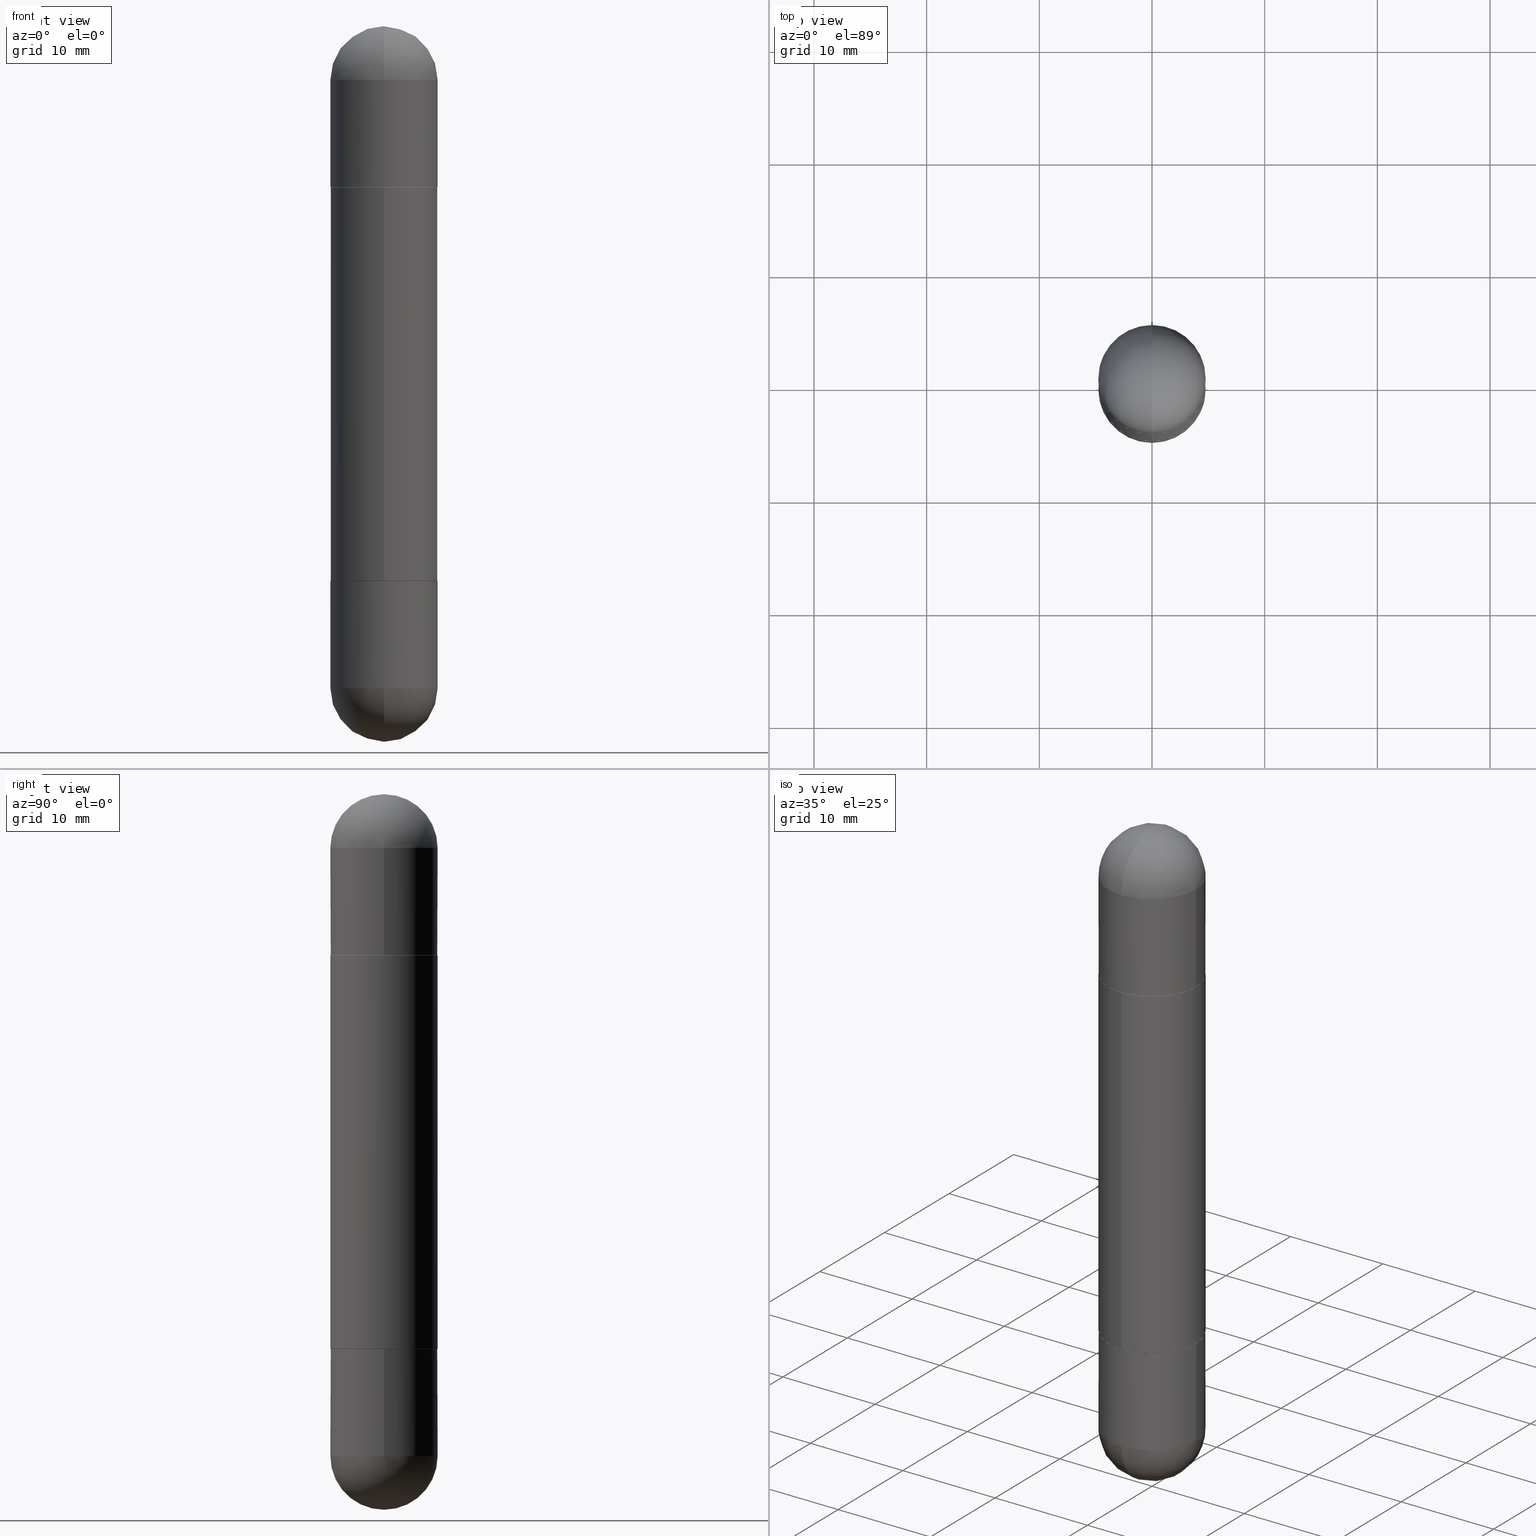
[diagram: canonical four-view strip — front | top / right | iso, engineering-drawing reading convention]
A machine part, canonical four-view strip (front | top / right | iso — engineering-drawing reading convention). The complete STEP part file that produces these views, byte-faithful:
ISO-10303-21;
HEADER;
FILE_DESCRIPTION (( 'STEP AP203' ),
    '1' );
FILE_NAME ('31536.STEP',
    '2024-03-01T12:42:35',
    ( '' ),
    ( '' ),
    'SwSTEP 2.0',
    'SolidWorks 2023',
    '' );
FILE_SCHEMA (( 'CONFIG_CONTROL_DESIGN' ));
ENDSEC;

DATA;
#1 = MANIFOLD_SOLID_BREP ( 'Mirror4[1]', #203 ) ;
#2 = ADVANCED_FACE ( 'NONE', ( #295 ), #538, .F. ) ;
#3 = ORIENTED_EDGE ( 'NONE', *, *, #800, .T. ) ;
#4 = DIRECTION ( 'NONE',  ( 2.438088387897960049E-29, -3.491481338843145188E-15, -1.000000000000000000 ) ) ;
#5 = MANIFOLD_SOLID_BREP ( 'Body-Move/Copy2[1]', #783 ) ;
#6 = FACE_OUTER_BOUND ( 'NONE', #450, .T. ) ;
#7 = EDGE_CURVE ( 'NONE', #56, #675, #753, .T. ) ;
#8 = ORIENTED_EDGE ( 'NONE', *, *, #31, .T. ) ;
#9 = CARTESIAN_POINT ( 'NONE',  ( -0.1875000000000000555, -6.088003085826207710E-15, -2.312500000000000000 ) ) ;
#10 = ADVANCED_FACE ( 'NONE', ( #155 ), #582, .F. ) ;
#11 = DIRECTION ( 'NONE',  ( 1.000000000000000000, -6.982962677686266711E-15, 0.000000000000000000 ) ) ;
#12 = AXIS2_PLACEMENT_3D ( 'NONE', #300, #484, #733 ) ;
#13 = ADVANCED_FACE ( 'NONE', ( #713 ), #574, .T. ) ;
#14 = AXIS2_PLACEMENT_3D ( 'NONE', #88, #352, #634 ) ;
#15 = DIRECTION ( 'NONE',  ( 1.000000000000000000, -6.982962677686270655E-15, 0.000000000000000000 ) ) ;
#16 = CARTESIAN_POINT ( 'NONE',  ( 5.324026836389243254E-29, -8.548232964214825368E-15, -0.1875000000000006661 ) ) ;
#17 = ORIENTED_EDGE ( 'NONE', *, *, #645, .T. ) ;
#18 = MANIFOLD_SOLID_BREP ( 'Mirror4[3]', #89 ) ;
#19 = EDGE_CURVE ( 'NONE', #475, #297, #506, .T. ) ;
#20 = DIRECTION ( 'NONE',  ( -1.000000000000000000, 6.982962677686265922E-15, 4.876176775795935793E-29 ) ) ;
#21 = DIRECTION ( 'NONE',  ( 2.446135509155562374E-29, -3.490526582243119048E-15, 1.000000000000000000 ) ) ;
#22 = ORIENTED_EDGE ( 'NONE', *, *, #181, .T. ) ;
#23 = VERTEX_POINT ( 'NONE', #263 ) ;
#24 = ORIENTED_EDGE ( 'NONE', *, *, #325, .F. ) ;
#25 = DIRECTION ( 'NONE',  ( -6.982962677686265922E-15, -1.000000000000000000, -3.661994629576761260E-15 ) ) ;
#26 = EDGE_CURVE ( 'NONE', #746, #62, #332, .T. ) ;
#27 = CARTESIAN_POINT ( 'NONE',  ( 0.000000000000000000, 0.000000000000000000, -1.250000000000000222 ) ) ;
#28 = CIRCLE ( 'NONE', #754, 0.1875000000000000555 ) ;
#29 = VERTEX_POINT ( 'NONE', #515 ) ;
#30 = CIRCLE ( 'NONE', #72, 0.1875000000000003331 ) ;
#31 = EDGE_CURVE ( 'NONE', #270, #344, #214, .T. ) ;
#32 = DIRECTION ( 'NONE',  ( 1.000000000000000000, -6.982962677686270655E-15, 0.000000000000000000 ) ) ;
#33 = VERTEX_POINT ( 'NONE', #333 ) ;
#34 = EDGE_LOOP ( 'NONE', ( #508, #244, #272, #337 ) ) ;
#35 = CARTESIAN_POINT ( 'NONE',  ( 0.1875000000000000278, -8.075796336744191053E-15, -0.5620000000000007212 ) ) ;
#36 = VERTEX_POINT ( 'NONE', #502 ) ;
#37 = CARTESIAN_POINT ( 'NONE',  ( 5.655146614303128380E-29, -8.074050596074775072E-15, -0.1875000000000006661 ) ) ;
#38 = CYLINDRICAL_SURFACE ( 'NONE', #12, 0.1875000000000000555 ) ;
#39 = CARTESIAN_POINT ( 'NONE',  ( 0.000000000000000000, 0.000000000000000000, 0.000000000000000000 ) ) ;
#40 = ADVANCED_FACE ( 'NONE', ( #633 ), #561, .T. ) ;
#41 = ORIENTED_EDGE ( 'NONE', *, *, #631, .F. ) ;
#42 = FACE_OUTER_BOUND ( 'NONE', #473, .T. ) ;
#43 = ADVANCED_FACE ( 'NONE', ( #6 ), #330, .T. ) ;
#44 = AXIS2_PLACEMENT_3D ( 'NONE', #477, #359, #349 ) ;
#45 = CIRCLE ( 'NONE', #619, 0.1875000000000001110 ) ;
#46 = DIRECTION ( 'NONE',  ( 4.851104656541377638E-15, 0.7071067811866103003, -0.7071067811864847341 ) ) ;
#47 = ORIENTED_EDGE ( 'NONE', *, *, #610, .T. ) ;
#48 = LOCAL_TIME ( 7, 42, 35.00000000000000000, #444 ) ;
#49 = CARTESIAN_POINT ( 'NONE',  ( 5.655146614303128380E-29, -8.074050596074775072E-15, -0.1875000000000006661 ) ) ;
#50 = DIRECTION ( 'NONE',  ( 2.445468806185136597E-29, -3.491481338843145583E-15, 1.000000000000000000 ) ) ;
#51 = APPLICATION_PROTOCOL_DEFINITION ( 'international standard', 'config_control_design', 1994, #396 ) ;
#52 = DIRECTION ( 'NONE',  ( -2.445468806185136877E-29, 3.491481338843145188E-15, -1.000000000000000000 ) ) ;
#53 = CARTESIAN_POINT ( 'NONE',  ( 5.324026836389243254E-29, -8.548232964214825368E-15, -2.312500000000000000 ) ) ;
#54 = PERSON_AND_ORGANIZATION ( #414, #307 ) ;
#55 = ADVANCED_FACE ( 'NONE', ( #385 ), #585, .F. ) ;
#56 = VERTEX_POINT ( 'NONE', #138 ) ;
#57 = CARTESIAN_POINT ( 'NONE',  ( 0.1875000000000000555, -1.309305502066175205E-15, 9.142831454617382414E-30 ) ) ;
#58 = DATE_TIME_ROLE ( 'classification_date' ) ;
#59 = AXIS2_PLACEMENT_3D ( 'NONE', #156, #588, #15 ) ;
#60 = CIRCLE ( 'NONE', #653, 0.1875000000000000555 ) ;
#61 = CARTESIAN_POINT ( 'NONE',  ( 5.324026836389243254E-29, -8.548232964214825368E-15, -0.1875000000000006661 ) ) ;
#62 = VERTEX_POINT ( 'NONE', #461 ) ;
#63 = PERSON_AND_ORGANIZATION ( #414, #307 ) ;
#64 = DIRECTION ( 'NONE',  ( -6.982962677686266711E-15, -1.000000000000000000, -2.913971193241879189E-15 ) ) ;
#65 = EDGE_LOOP ( 'NONE', ( #791, #217, #541, #731 ) ) ;
#66 = APPROVAL_ROLE ( '' ) ;
#67 = EDGE_CURVE ( 'NONE', #781, #23, #705, .T. ) ;
#68 = DIRECTION ( 'NONE',  ( -2.446135509155562374E-29, 3.490526582243119048E-15, -1.000000000000000000 ) ) ;
#69 = DIRECTION ( 'NONE',  ( 1.000000000000000000, -6.982962677686265922E-15, 0.000000000000000000 ) ) ;
#70 = CARTESIAN_POINT ( 'NONE',  ( -0.1875000000000000555, 1.332267629550188243E-15, -9.223003294227950793E-30 ) ) ;
#71 = CIRCLE ( 'NONE', #291, 0.1864999999999999714 ) ;
#72 = AXIS2_PLACEMENT_3D ( 'NONE', #16, #288, #281 ) ;
#73 = CARTESIAN_POINT ( 'NONE',  ( 5.324026836389243254E-29, -8.548232964214825368E-15, -0.1875000000000006661 ) ) ;
#74 = LOCAL_TIME ( 7, 42, 35.00000000000000000, #627 ) ;
#75 = APPROVAL ( #387, 'UNSPECIFIED' ) ;
#76 = VERTEX_POINT ( 'NONE', #576 ) ;
#77 = EDGE_CURVE ( 'NONE', #344, #560, #191, .T. ) ;
#78 = CYLINDRICAL_SURFACE ( 'NONE', #668, 0.1875000000000000555 ) ;
#79 = ORIENTED_EDGE ( 'NONE', *, *, #67, .T. ) ;
#80 = DIRECTION ( 'NONE',  ( -2.445468806185136877E-29, 3.491481338843145188E-15, 1.000000000000000000 ) ) ;
#81 = CARTESIAN_POINT ( 'NONE',  ( 1.279482876584437493E-15, 0.1864999999999932268, -0.5620000000000000551 ) ) ;
#82 = ORIENTED_EDGE ( 'NONE', *, *, #206, .T. ) ;
#83 = ADVANCED_FACE ( 'NONE', ( #507 ), #78, .T. ) ;
#84 = DIMENSIONAL_EXPONENTS ( 1.000000000000000000, 0.000000000000000000, 0.000000000000000000, 0.000000000000000000, 0.000000000000000000, 0.000000000000000000, 0.000000000000000000 ) ;
#85 = DIRECTION ( 'NONE',  ( -6.982962677686265922E-15, -1.000000000000000000, 0.000000000000000000 ) ) ;
#86 = EDGE_LOOP ( 'NONE', ( #543, #395, #779, #775 ) ) ;
#87 = DIRECTION ( 'NONE',  ( 6.982962677686266711E-15, 1.000000000000000000, 3.460340791974727494E-15 ) ) ;
#88 = CARTESIAN_POINT ( 'NONE',  ( 5.655146614303128380E-29, -8.074050596074775072E-15, -0.1875000000000006661 ) ) ;
#89 = CLOSED_SHELL ( 'NONE', ( #96, #13, #513, #462, #282 ) ) ;
#90 = CIRCLE ( 'NONE', #784, 0.1864999999999999714 ) ;
#91 = CIRCLE ( 'NONE', #776, 0.1875000000000000555 ) ;
#92 = AXIS2_PLACEMENT_3D ( 'NONE', #137, #575, #761 ) ;
#93 = ORIENTED_EDGE ( 'NONE', *, *, #136, .T. ) ;
#94 = DIRECTION ( 'NONE',  ( -1.000000000000000000, 0.000000000000000000, 0.000000000000000000 ) ) ;
#95 = ORIENTED_EDGE ( 'NONE', *, *, #581, .F. ) ;
#96 = ADVANCED_FACE ( 'NONE', ( #766 ), #572, .T. ) ;
#97 = ORIENTED_EDGE ( 'NONE', *, *, #234, .T. ) ;
#98 = ORIENTED_EDGE ( 'NONE', *, *, #345, .T. ) ;
#99 = CARTESIAN_POINT ( 'NONE',  ( -1.309305502066128860E-15, -0.1875000000000069389, -0.5630000000000014992 ) ) ;
#100 = CARTESIAN_POINT ( 'NONE',  ( -0.1875000000000000278, -6.133927340794232602E-15, -0.5620000000000007212 ) ) ;
#101 = DIRECTION ( 'NONE',  ( -6.982962677686265922E-15, -1.000000000000000000, -3.661994629576761260E-15 ) ) ;
#102 = AXIS2_PLACEMENT_3D ( 'NONE', #159, #458, #397 ) ;
#103 = UNCERTAINTY_MEASURE_WITH_UNIT (LENGTH_MEASURE( 1.000000000000000082E-05 ), #552, 'distance_accuracy_value', 'NONE');
#104 = EDGE_LOOP ( 'NONE', ( #350, #540 ) ) ;
#105 = DIRECTION ( 'NONE',  ( -2.446135509155562374E-29, 3.490526582243119048E-15, 1.000000000000000000 ) ) ;
#106 = ORIENTED_EDGE ( 'NONE', *, *, #550, .T. ) ;
#107 = ADVANCED_FACE ( 'NONE', ( #762 ), #276, .T. ) ;
#108 = DIRECTION ( 'NONE',  ( 1.000000000000000000, -6.982962677686270655E-15, 0.000000000000000000 ) ) ;
#109 = CARTESIAN_POINT ( 'NONE',  ( 4.740610616743479654E-29, -6.764640516387164684E-15, -0.5620000000000007212 ) ) ;
#110 = ORIENTED_EDGE ( 'NONE', *, *, #7, .F. ) ;
#111 = EDGE_CURVE ( 'NONE', #584, #348, #778, .T. ) ;
#112 = CARTESIAN_POINT ( 'NONE',  ( -1.286343374582108525E-15, -0.1875000000000084932, -0.1875000000000013045 ) ) ;
#113 = ORIENTED_EDGE ( 'NONE', *, *, #232, .T. ) ;
#114 = LINE ( 'NONE', #736, #162 ) ;
#115 = FACE_OUTER_BOUND ( 'NONE', #65, .T. ) ;
#116 = AXIS2_PLACEMENT_3D ( 'NONE', #241, #303, #366 ) ;
#117 = AXIS2_PLACEMENT_3D ( 'NONE', #133, #468, #638 ) ;
#118 = CC_DESIGN_APPROVAL ( #75, ( #579 ) ) ;
#119 = PLANE ( 'NONE',  #238 ) ;
#120 = ORIENTED_EDGE ( 'NONE', *, *, #255, .F. ) ;
#121 = APPROVAL_ROLE ( '' ) ;
#122 = CARTESIAN_POINT ( 'NONE',  ( -0.1875000000000000278, -6.088003085826206921E-15, -1.937999999999999945 ) ) ;
#123 = DIRECTION ( 'NONE',  ( -1.000000000000000000, 6.982962677686266711E-15, -4.883557194083113462E-29 ) ) ;
#124 = CARTESIAN_POINT ( 'NONE',  ( 0.000000000000000000, 0.000000000000000000, -2.500000000000000444 ) ) ;
#125 = ORIENTED_EDGE ( 'NONE', *, *, #664, .T. ) ;
#126 = LINE ( 'NONE', #57, #192 ) ;
#127 = COORDINATED_UNIVERSAL_TIME_OFFSET ( 5, 0, .BEHIND. ) ;
#128 = DIRECTION ( 'NONE',  ( 5.024295867788490741E-15, 0.7071067811866103003, 0.7071067811864847341 ) ) ;
#129 = DIRECTION ( 'NONE',  ( 6.982962677686266711E-15, 1.000000000000000000, -2.913971193241875639E-15 ) ) ;
#130 = DATE_AND_TIME ( #694, #48 ) ;
#131 = AXIS2_PLACEMENT_3D ( 'NONE', #804, #745, #129 ) ;
#132 = CIRCLE ( 'NONE', #643, 0.1864999999999999714 ) ;
#133 = CARTESIAN_POINT ( 'NONE',  ( 4.739318546386794397E-29, -6.766490834678016045E-15, -0.5620000000000007212 ) ) ;
#134 = DIRECTION ( 'NONE',  ( 1.000000000000000000, -6.982962677686265922E-15, 0.000000000000000000 ) ) ;
#135 = VERTEX_POINT ( 'NONE', #659 ) ;
#136 = EDGE_CURVE ( 'NONE', #318, #135, #177, .T. ) ;
#137 = CARTESIAN_POINT ( 'NONE',  ( 4.740610616743479654E-29, -6.764640516387164684E-15, -0.5620000000000007212 ) ) ;
#138 = CARTESIAN_POINT ( 'NONE',  ( 1.286343374582209894E-15, 0.1874999999999957534, -1.250000000000000222 ) ) ;
#139 = ADVANCED_FACE ( 'NONE', ( #472 ), #721, .T. ) ;
#140 = EDGE_LOOP ( 'NONE', ( #722, #95, #710, #592, #47 ) ) ;
#141 = SHAPE_DEFINITION_REPRESENTATION ( #558, #763 ) ;
#142 = DIRECTION ( 'NONE',  ( -7.105427357600999492E-15, -1.000000000000000000, 0.000000000000000000 ) ) ;
#143 = LINE ( 'NONE', #145, #223 ) ;
#144 = EDGE_LOOP ( 'NONE', ( #456, #185, #432, #608, #590 ) ) ;
#145 = CARTESIAN_POINT ( 'NONE',  ( -1.302322539388441071E-15, -0.1865000000000067437, -0.5620000000000013873 ) ) ;
#146 = AXIS2_PLACEMENT_3D ( 'NONE', #586, #4, #403 ) ;
#147 = AXIS2_PLACEMENT_3D ( 'NONE', #441, #305, #628 ) ;
#148 = EDGE_CURVE ( 'NONE', #76, #577, #526, .T. ) ;
#149 = AXIS2_PLACEMENT_3D ( 'NONE', #180, #105, #678 ) ;
#150 = ORIENTED_EDGE ( 'NONE', *, *, #531, .T. ) ;
#151 = DIRECTION ( 'NONE',  ( -6.982962677686265922E-15, -1.000000000000000000, -3.642463991552347014E-15 ) ) ;
#152 = DIRECTION ( 'NONE',  ( 1.000000000000000000, -6.860497997771530774E-15, -4.840798879624142912E-29 ) ) ;
#153 = ADVANCED_FACE ( 'NONE', ( #774 ), #729, .T. ) ;
#154 = DIRECTION ( 'NONE',  ( -1.000000000000000000, 6.982962677686265922E-15, 4.883557194083112340E-29 ) ) ;
#155 = FACE_OUTER_BOUND ( 'NONE', #386, .T. ) ;
#156 = CARTESIAN_POINT ( 'NONE',  ( 5.655146614303128380E-29, -8.074050596074775072E-15, -0.1875000000000006661 ) ) ;
#157 = CARTESIAN_POINT ( 'NONE',  ( 5.655146614303128380E-29, -8.074050596074775072E-15, -2.312500000000000000 ) ) ;
#158 = ORIENTED_EDGE ( 'NONE', *, *, #770, .F. ) ;
#159 = CARTESIAN_POINT ( 'NONE',  ( 0.000000000000000000, 0.000000000000000000, -2.500000000000000444 ) ) ;
#160 = CARTESIAN_POINT ( 'NONE',  ( -0.1875000000000000555, 1.286343374582162562E-15, -2.500000000000000444 ) ) ;
#161 = AXIS2_PLACEMENT_3D ( 'NONE', #271, #812, #151 ) ;
#162 = VECTOR ( 'NONE', #52, 39.37007874015748143 ) ;
#163 = ORIENTED_EDGE ( 'NONE', *, *, #790, .T. ) ;
#164 = CIRCLE ( 'NONE', #149, 0.1875000000000002220 ) ;
#165 = APPROVAL_PERSON_ORGANIZATION ( #193, #228, #121 ) ;
#166 = VERTEX_POINT ( 'NONE', #293 ) ;
#167 = CARTESIAN_POINT ( 'NONE',  ( 3.057669386444453598E-29, -4.363158227803900388E-15, -1.250000000000000222 ) ) ;
#168 = ORIENTED_EDGE ( 'NONE', *, *, #550, .F. ) ;
#169 = CARTESIAN_POINT ( 'NONE',  ( 4.740610616743479654E-29, -6.764640516387164684E-15, -0.5620000000000007212 ) ) ;
#170 = ORIENTED_EDGE ( 'NONE', *, *, #283, .F. ) ;
#171 = CARTESIAN_POINT ( 'NONE',  ( 4.740610616743479654E-29, -6.764640516387164684E-15, -0.5620000000000007212 ) ) ;
#172 = ORIENTED_EDGE ( 'NONE', *, *, #664, .F. ) ;
#173 = VERTEX_POINT ( 'NONE', #100 ) ;
#174 = CARTESIAN_POINT ( 'NONE',  ( 5.655146614303128380E-29, -8.074050596074775072E-15, -2.312500000000000000 ) ) ;
#175 = EDGE_LOOP ( 'NONE', ( #302, #420, #501, #417, #681 ) ) ;
#176 = ADVANCED_FACE ( 'NONE', ( #353 ), #598, .F. ) ;
#177 = CIRCLE ( 'NONE', #548, 0.1875000000000000555 ) ;
#178 = CIRCLE ( 'NONE', #497, 0.1875000000000000555 ) ;
#179 = CARTESIAN_POINT ( 'NONE',  ( 4.740610616743479654E-29, -6.764640516387164684E-15, -1.937999999999999945 ) ) ;
#180 = CARTESIAN_POINT ( 'NONE',  ( 4.738164481234324369E-29, -6.761149989804920839E-15, -1.936999999999999833 ) ) ;
#181 = EDGE_CURVE ( 'NONE', #297, #475, #381, .T. ) ;
#182 = EDGE_CURVE ( 'NONE', #514, #76, #90, .T. ) ;
#183 = DIRECTION ( 'NONE',  ( -2.446135509155562374E-29, 3.490526582243119048E-15, 1.000000000000000000 ) ) ;
#184 = DIRECTION ( 'NONE',  ( 2.445468806185136597E-29, -3.491481338843145583E-15, 1.000000000000000000 ) ) ;
#185 = ORIENTED_EDGE ( 'NONE', *, *, #738, .T. ) ;
#186 = LINE ( 'NONE', #793, #602 ) ;
#187 = DIRECTION ( 'NONE',  ( 6.982962677686266711E-15, 1.000000000000000000, 3.460340791974727494E-15 ) ) ;
#188 = VERTEX_POINT ( 'NONE', #488 ) ;
#189 = DIRECTION ( 'NONE',  ( 1.000000000000000000, -6.982962677686270655E-15, 0.000000000000000000 ) ) ;
#190 = DIRECTION ( 'NONE',  ( -2.446135509155562374E-29, 3.490526582243119048E-15, -1.000000000000000000 ) ) ;
#191 = CIRCLE ( 'NONE', #357, 0.1875000000000000278 ) ;
#192 = VECTOR ( 'NONE', #320, 39.37007874015748143 ) ;
#193 = PERSON_AND_ORGANIZATION ( #414, #307 ) ;
#194 = EDGE_CURVE ( 'NONE', #298, #173, #114, .T. ) ;
#195 = CARTESIAN_POINT ( 'NONE',  ( 5.324026836389243254E-29, -8.548232964214825368E-15, -0.1875000000000006661 ) ) ;
#196 = ORIENTED_EDGE ( 'NONE', *, *, #391, .T. ) ;
#197 = CARTESIAN_POINT ( 'NONE',  ( 1.325162202192633778E-15, 0.1864999999999932268, -1.938000000000000389 ) ) ;
#198 = CC_DESIGN_PERSON_AND_ORGANIZATION_ASSIGNMENT ( #383, #254, ( #409 ) ) ;
#199 = CARTESIAN_POINT ( 'NONE',  ( 0.1875000000000000555, -1.309305502066175205E-15, -2.500000000000000444 ) ) ;
#200 = EDGE_LOOP ( 'NONE', ( #522, #517, #596, #565 ) ) ;
#201 = APPROVAL_DATE_TIME ( #510, #228 ) ;
#202 = CARTESIAN_POINT ( 'NONE',  ( 5.655146614303128380E-29, -8.074050596074775072E-15, -0.1875000000000006661 ) ) ;
#203 = CLOSED_SHELL ( 'NONE', ( #562, #635, #176, #544, #654, #262 ) ) ;
#204 = CIRCLE ( 'NONE', #467, 0.1875000000000000555 ) ;
#205 = AXIS2_PLACEMENT_3D ( 'NONE', #231, #603, #296 ) ;
#206 = EDGE_CURVE ( 'NONE', #475, #675, #186, .T. ) ;
#207 = CARTESIAN_POINT ( 'NONE',  ( 4.740610616743479654E-29, -6.764640516387164684E-15, -0.5620000000000007212 ) ) ;
#208 = PERSON_AND_ORGANIZATION ( #414, #307 ) ;
#209 = CARTESIAN_POINT ( 'NONE',  ( 4.738164481234324369E-29, -6.761149989804920839E-15, -0.5630000000000008331 ) ) ;
#210 = CARTESIAN_POINT ( 'NONE',  ( 0.000000000000000000, 0.000000000000000000, 0.000000000000000000 ) ) ;
#211 = ORIENTED_EDGE ( 'NONE', *, *, #542, .F. ) ;
#212 = CARTESIAN_POINT ( 'NONE',  ( 4.740610616743479654E-29, -6.764640516387164684E-15, -1.937999999999999945 ) ) ;
#213 = EDGE_LOOP ( 'NONE', ( #650, #480, #163, #547 ) ) ;
#214 = LINE ( 'NONE', #70, #533 ) ;
#215 = CIRCLE ( 'NONE', #716, 0.1875000000000002220 ) ;
#216 =( GEOMETRIC_REPRESENTATION_CONTEXT ( 3 ) GLOBAL_UNCERTAINTY_ASSIGNED_CONTEXT ( ( #103 ) ) GLOBAL_UNIT_ASSIGNED_CONTEXT ( ( #552, #672, #613 ) ) REPRESENTATION_CONTEXT ( 'NONE', 'WORKASPACE' ) );
#217 = ORIENTED_EDGE ( 'NONE', *, *, #26, .T. ) ;
#218 = CARTESIAN_POINT ( 'NONE',  ( 0.000000000000000000, 0.000000000000000000, -2.500000000000000444 ) ) ;
#219 = DIRECTION ( 'NONE',  ( -4.937700262164969294E-15, -0.7071067811866054154, -0.7071067811864896191 ) ) ;
#220 = DIRECTION ( 'NONE',  ( -6.982962677686265922E-15, -1.000000000000000000, -3.661994629576761260E-15 ) ) ;
#221 = DIRECTION ( 'NONE',  ( -1.000000000000000000, 0.000000000000000000, 0.000000000000000000 ) ) ;
#222 = FACE_OUTER_BOUND ( 'NONE', #275, .T. ) ;
#223 = VECTOR ( 'NONE', #219, 39.37007874015748143 ) ;
#224 = ORIENTED_EDGE ( 'NONE', *, *, #573, .F. ) ;
#225 = CIRCLE ( 'NONE', #459, 0.1875000000000000278 ) ;
#226 = LOCAL_TIME ( 7, 42, 35.00000000000000000, #759 ) ;
#227 = ORIENTED_EDGE ( 'NONE', *, *, #401, .T. ) ;
#228 = APPROVAL ( #632, 'UNSPECIFIED' ) ;
#229 = DIRECTION ( 'NONE',  ( -2.445468806185136597E-29, 3.491481338843145583E-15, 1.000000000000000000 ) ) ;
#230 = EDGE_LOOP ( 'NONE', ( #525, #125, #616, #723 ) ) ;
#231 = CARTESIAN_POINT ( 'NONE',  ( 4.738164481234324369E-29, -6.761149989804920839E-15, -1.936999999999999833 ) ) ;
#232 = EDGE_CURVE ( 'NONE', #577, #704, #215, .T. ) ;
#233 = ORIENTED_EDGE ( 'NONE', *, *, #610, .F. ) ;
#234 = EDGE_CURVE ( 'NONE', #298, #36, #204, .T. ) ;
#235 = VERTEX_POINT ( 'NONE', #523 ) ;
#236 = DIRECTION ( 'NONE',  ( -2.446135509155562374E-29, 3.490526582243119048E-15, -1.000000000000000000 ) ) ;
#237 = VECTOR ( 'NONE', #673, 39.37007874015748143 ) ;
#238 = AXIS2_PLACEMENT_3D ( 'NONE', #623, #661, #407 ) ;
#239 = DIRECTION ( 'NONE',  ( 1.000000000000000000, 0.000000000000000000, 0.000000000000000000 ) ) ;
#240 = ORIENTED_EDGE ( 'NONE', *, *, #519, .T. ) ;
#241 = CARTESIAN_POINT ( 'NONE',  ( 4.738164481234324369E-29, -6.761149989804920839E-15, -0.5630000000000008331 ) ) ;
#242 = DIRECTION ( 'NONE',  ( -2.445468806185136877E-29, 3.491481338843145188E-15, -1.000000000000000000 ) ) ;
#243 = LENGTH_MEASURE_WITH_UNIT ( LENGTH_MEASURE( 0.02539999999999999897 ), #609 );
#244 = ORIENTED_EDGE ( 'NONE', *, *, #283, .T. ) ;
#245 = LINE ( 'NONE', #199, #481 ) ;
#246 = DATE_AND_TIME ( #377, #655 ) ;
#247 = AXIS2_PLACEMENT_3D ( 'NONE', #511, #648, #142 ) ;
#248 = AXIS2_PLACEMENT_3D ( 'NONE', #813, #152, #280 ) ;
#249 = AXIS2_PLACEMENT_3D ( 'NONE', #341, #589, #399 ) ;
#250 = PRODUCT_DEFINITION ( 'UNKNOWN', '', #409, #717 ) ;
#251 = CARTESIAN_POINT ( 'NONE',  ( 0.000000000000000000, 0.000000000000000000, -2.500000000000000444 ) ) ;
#252 = DIRECTION ( 'NONE',  ( 6.982962677686265922E-15, 1.000000000000000000, 0.000000000000000000 ) ) ;
#253 = EDGE_LOOP ( 'NONE', ( #224, #529, #22, #120 ) ) ;
#254 = PERSON_AND_ORGANIZATION_ROLE ( 'creator' ) ;
#255 = EDGE_CURVE ( 'NONE', #728, #475, #143, .T. ) ;
#256 = CYLINDRICAL_SURFACE ( 'NONE', #617, 0.1875000000000001110 ) ;
#257 = CARTESIAN_POINT ( 'NONE',  ( 4.740610616743479654E-29, -6.764640516387164684E-15, -1.937999999999999945 ) ) ;
#258 = EDGE_CURVE ( 'NONE', #781, #36, #438, .T. ) ;
#259 = DATE_TIME_ROLE ( 'creation_date' ) ;
#260 = DIRECTION ( 'NONE',  ( -2.446135509155562374E-29, 3.490526582243119048E-15, -1.000000000000000000 ) ) ;
#261 = DIRECTION ( 'NONE',  ( -2.445468806185136597E-29, 3.491481338843145583E-15, -1.000000000000000000 ) ) ;
#262 = ADVANCED_FACE ( 'NONE', ( #760 ), #453, .T. ) ;
#263 = CARTESIAN_POINT ( 'NONE',  ( 1.309305502066231017E-15, 0.1874999999999918954, -0.1875000000000000278 ) ) ;
#264 = VECTOR ( 'NONE', #128, 39.37007874015748143 ) ;
#265 = AXIS2_PLACEMENT_3D ( 'NONE', #597, #260, #25 ) ;
#266 = CC_DESIGN_APPROVAL ( #742, ( #409 ) ) ;
#267 = FACE_OUTER_BOUND ( 'NONE', #253, .T. ) ;
#268 = EDGE_LOOP ( 'NONE', ( #233, #342 ) ) ;
#269 = EDGE_CURVE ( 'NONE', #553, #297, #646, .T. ) ;
#270 = VERTEX_POINT ( 'NONE', #9 ) ;
#271 = CARTESIAN_POINT ( 'NONE',  ( 4.738164481234324369E-29, -6.761149989804920839E-15, -0.5630000000000008331 ) ) ;
#272 = ORIENTED_EDGE ( 'NONE', *, *, #499, .T. ) ;
#273 = EDGE_CURVE ( 'NONE', #516, #584, #306, .T. ) ;
#274 = ORIENTED_EDGE ( 'NONE', *, *, #680, .T. ) ;
#275 = EDGE_LOOP ( 'NONE', ( #470, #427 ) ) ;
#276 = CONICAL_SURFACE ( 'NONE', #406, 0.1864999999999999714, 0.7853981633975336552 ) ;
#277 = AXIS2_PLACEMENT_3D ( 'NONE', #656, #505, #702 ) ;
#278 = DIRECTION ( 'NONE',  ( 1.000000000000000000, -6.982962677686265922E-15, 4.876176775795935793E-29 ) ) ;
#279 = DIRECTION ( 'NONE',  ( 1.000000000000000000, -6.982962677686266711E-15, -4.883557194083113462E-29 ) ) ;
#280 = DIRECTION ( 'NONE',  ( 6.860497997771530774E-15, 1.000000000000000000, 0.000000000000000000 ) ) ;
#281 = DIRECTION ( 'NONE',  ( 6.860497997771530774E-15, 1.000000000000000000, 0.000000000000000000 ) ) ;
#282 = ADVANCED_FACE ( 'NONE', ( #491 ), #38, .T. ) ;
#283 = EDGE_CURVE ( 'NONE', #29, #658, #71, .T. ) ;
#284 = DIRECTION ( 'NONE',  ( -2.445468806185136597E-29, 3.491481338843145583E-15, 1.000000000000000000 ) ) ;
#285 = ORIENTED_EDGE ( 'NONE', *, *, #670, .T. ) ;
#286 = EDGE_LOOP ( 'NONE', ( #725, #410, #82, #110 ) ) ;
#287 = ORIENTED_EDGE ( 'NONE', *, *, #607, .F. ) ;
#288 = DIRECTION ( 'NONE',  ( 1.000000000000000000, -6.860497997771530774E-15, -4.840798879624142912E-29 ) ) ;
#289 = ORIENTED_EDGE ( 'NONE', *, *, #769, .T. ) ;
#290 = MANIFOLD_SOLID_BREP ( 'Combine1', #652 ) ;
#291 = AXIS2_PLACEMENT_3D ( 'NONE', #179, #183, #430 ) ;
#292 = AXIS2_PLACEMENT_3D ( 'NONE', #202, #388, #464 ) ;
#293 = CARTESIAN_POINT ( 'NONE',  ( -0.1875000000000000278, -6.133927340794232602E-15, -0.5620000000000007212 ) ) ;
#294 = EDGE_CURVE ( 'NONE', #365, #516, #564, .T. ) ;
#295 = FACE_OUTER_BOUND ( 'NONE', #486, .T. ) ;
#296 = DIRECTION ( 'NONE',  ( -6.982962677686265922E-15, -1.000000000000000000, 2.913971193241877216E-15 ) ) ;
#297 = VERTEX_POINT ( 'NONE', #362 ) ;
#298 = VERTEX_POINT ( 'NONE', #612 ) ;
#299 = DIRECTION ( 'NONE',  ( 1.000000000000000000, -6.982962677686266711E-15, 0.000000000000000000 ) ) ;
#300 = CARTESIAN_POINT ( 'NONE',  ( 0.000000000000000000, 0.000000000000000000, -2.500000000000000444 ) ) ;
#301 = CARTESIAN_POINT ( 'NONE',  ( 5.790569421510013204E-29, -9.191404651505909607E-15, -2.500000000000000000 ) ) ;
#302 = ORIENTED_EDGE ( 'NONE', *, *, #294, .F. ) ;
#303 = DIRECTION ( 'NONE',  ( 2.446135509155562374E-29, -3.490526582243119048E-15, 1.000000000000000000 ) ) ;
#304 = AXIS2_PLACEMENT_3D ( 'NONE', #346, #593, #20 ) ;
#305 = DIRECTION ( 'NONE',  ( -2.446135509155562374E-29, 3.490526582243119048E-15, 1.000000000000000000 ) ) ;
#306 = CIRCLE ( 'NONE', #59, 0.1875000000000000555 ) ;
#307 = ORGANIZATION ( 'UNSPECIFIED', 'UNSPECIFIED', '' ) ;
#308 = CARTESIAN_POINT ( 'NONE',  ( 5.790569421510013204E-29, -9.191404651505909607E-15, -3.414809992080329023E-16 ) ) ;
#309 = EDGE_LOOP ( 'NONE', ( #718, #79, #809, #97 ) ) ;
#310 = DIRECTION ( 'NONE',  ( 2.445468806185136597E-29, -3.491481338843145583E-15, 1.000000000000000000 ) ) ;
#311 = DIRECTION ( 'NONE',  ( 1.000000000000000000, -6.982962677686266711E-15, 0.000000000000000000 ) ) ;
#312 = CARTESIAN_POINT ( 'NONE',  ( 1.286343374582210880E-15, 0.1874999999999935052, -0.5630000000000001670 ) ) ;
#313 = DIRECTION ( 'NONE',  ( 2.446135509155562374E-29, -3.490526582243119048E-15, 1.000000000000000000 ) ) ;
#314 = CARTESIAN_POINT ( 'NONE',  ( 5.324026836389243254E-29, -8.548232964214825368E-15, -0.1875000000000006661 ) ) ;
#315 = CARTESIAN_POINT ( 'NONE',  ( 5.324026836389243254E-29, -8.548232964214825368E-15, -2.312500000000000000 ) ) ;
#316 = ORIENTED_EDGE ( 'NONE', *, *, #637, .F. ) ;
#317 = CARTESIAN_POINT ( 'NONE',  ( 5.655146614303128380E-29, -8.074050596074775072E-15, -2.312500000000000000 ) ) ;
#318 = VERTEX_POINT ( 'NONE', #355 ) ;
#319 = AXIS2_PLACEMENT_3D ( 'NONE', #61, #375, #808 ) ;
#320 = DIRECTION ( 'NONE',  ( -2.445468806185136877E-29, 3.491481338843145188E-15, 1.000000000000000000 ) ) ;
#321 = EDGE_CURVE ( 'NONE', #584, #33, #28, .T. ) ;
#322 = AXIS2_PLACEMENT_3D ( 'NONE', #207, #449, #571 ) ;
#323 = APPLICATION_PROTOCOL_DEFINITION ( 'international standard', 'config_control_design', 1994, #807 ) ;
#324 = LINE ( 'NONE', #380, #237 ) ;
#325 = EDGE_CURVE ( 'NONE', #318, #560, #126, .T. ) ;
#326 = FACE_OUTER_BOUND ( 'NONE', #213, .T. ) ;
#327 = SECURITY_CLASSIFICATION_LEVEL ( 'unclassified' ) ;
#328 = LINE ( 'NONE', #160, #788 ) ;
#329 = DIRECTION ( 'NONE',  ( -2.446135509155562374E-29, 3.490526582243119048E-15, -1.000000000000000000 ) ) ;
#330 = CYLINDRICAL_SURFACE ( 'NONE', #814, 0.1875000000000000555 ) ;
#331 = ORIENTED_EDGE ( 'NONE', *, *, #666, .F. ) ;
#332 = CIRCLE ( 'NONE', #247, 0.1875000000000003331 ) ;
#333 = CARTESIAN_POINT ( 'NONE',  ( 1.309305502066231017E-15, 0.1874999999999918954, -0.1875000000000000278 ) ) ;
#334 = VECTOR ( 'NONE', #595, 39.37007874015748143 ) ;
#335 = DIRECTION ( 'NONE',  ( -6.982962677686265922E-15, -1.000000000000000000, 3.490526582243119048E-15 ) ) ;
#336 = EDGE_LOOP ( 'NONE', ( #771, #289, #168, #463 ) ) ;
#337 = ORIENTED_EDGE ( 'NONE', *, *, #790, .F. ) ;
#338 = CARTESIAN_POINT ( 'NONE',  ( 4.739318546386794397E-29, -6.766490834678016045E-15, -1.937999999999999945 ) ) ;
#339 = ADVANCED_FACE ( 'NONE', ( #326 ), #256, .T. ) ;
#340 = AXIS2_PLACEMENT_3D ( 'NONE', #27, #622, #740 ) ;
#341 = CARTESIAN_POINT ( 'NONE',  ( 4.740610616743479654E-29, -6.764640516387164684E-15, -0.5620000000000007212 ) ) ;
#342 = ORIENTED_EDGE ( 'NONE', *, *, #391, .F. ) ;
#343 = CIRCLE ( 'NONE', #732, 0.1875000000000000278 ) ;
#344 = VERTEX_POINT ( 'NONE', #122 ) ;
#345 = EDGE_CURVE ( 'NONE', #29, #478, #625, .T. ) ;
#346 = CARTESIAN_POINT ( 'NONE',  ( 1.309305502066222340E-15, 0.1874999999999932554, -0.5620000000000001661 ) ) ;
#347 = DIRECTION ( 'NONE',  ( 1.000000000000000000, -6.982962677686270655E-15, 0.000000000000000000 ) ) ;
#348 = VERTEX_POINT ( 'NONE', #379 ) ;
#349 = DIRECTION ( 'NONE',  ( 1.000000000000000000, -6.982962677686265922E-15, 4.876176775795935793E-29 ) ) ;
#350 = ORIENTED_EDGE ( 'NONE', *, *, #792, .T. ) ;
#351 = SPHERICAL_SURFACE ( 'NONE', #393, 0.1875000000000003331 ) ;
#352 = DIRECTION ( 'NONE',  ( 2.445468806185136597E-29, -3.491481338843145583E-15, 1.000000000000000000 ) ) ;
#353 = FACE_OUTER_BOUND ( 'NONE', #657, .T. ) ;
#354 = ORIENTED_EDGE ( 'NONE', *, *, #800, .F. ) ;
#355 = CARTESIAN_POINT ( 'NONE',  ( 0.1875000000000000555, -8.729576217442571356E-15, -2.312500000000000000 ) ) ;
#356 = DIRECTION ( 'NONE',  ( -6.982962677686265922E-15, -1.000000000000000000, -3.642463991552347014E-15 ) ) ;
#357 = AXIS2_PLACEMENT_3D ( 'NONE', #338, #644, #11 ) ;
#358 = CIRCLE ( 'NONE', #469, 0.1864999999999999714 ) ;
#359 = DIRECTION ( 'NONE',  ( -2.445468806185136597E-29, 3.491481338843145583E-15, 1.000000000000000000 ) ) ;
#360 = DIRECTION ( 'NONE',  ( 2.446135509155562374E-29, -3.490526582243119048E-15, 1.000000000000000000 ) ) ;
#361 = ORIENTED_EDGE ( 'NONE', *, *, #518, .T. ) ;
#362 = CARTESIAN_POINT ( 'NONE',  ( 1.286343374582210880E-15, 0.1874999999999935052, -0.5630000000000001670 ) ) ;
#363 = ORIENTED_EDGE ( 'NONE', *, *, #67, .F. ) ;
#364 = FACE_OUTER_BOUND ( 'NONE', #34, .T. ) ;
#365 = VERTEX_POINT ( 'NONE', #412 ) ;
#366 = DIRECTION ( 'NONE',  ( -6.982962677686265922E-15, -1.000000000000000000, -3.642463991552347014E-15 ) ) ;
#367 = AXIS2_PLACEMENT_3D ( 'NONE', #124, #376, #647 ) ;
#368 = DIRECTION ( 'NONE',  ( 1.000000000000000000, -6.982962677686270655E-15, 0.000000000000000000 ) ) ;
#369 = CIRCLE ( 'NONE', #496, 0.1875000000000000278 ) ;
#370 = CIRCLE ( 'NONE', #205, 0.1875000000000002220 ) ;
#371 = DIRECTION ( 'NONE',  ( -2.446135509155562374E-29, 3.490526582243119048E-15, -1.000000000000000000 ) ) ;
#372 = CC_DESIGN_DATE_AND_TIME_ASSIGNMENT ( #246, #259, ( #250 ) ) ;
#373 = DIRECTION ( 'NONE',  ( 1.000000000000000000, -6.982962677686266711E-15, -4.883557194083113462E-29 ) ) ;
#374 = ORIENTED_EDGE ( 'NONE', *, *, #767, .T. ) ;
#375 = DIRECTION ( 'NONE',  ( 1.000000000000000000, -6.982962677686266711E-15, -4.883557194083113462E-29 ) ) ;
#376 = DIRECTION ( 'NONE',  ( -2.445468806185136597E-29, 3.491481338843145583E-15, -1.000000000000000000 ) ) ;
#377 = CALENDAR_DATE ( 2024, 1, 3 ) ;
#378 = ADVANCED_FACE ( 'NONE', ( #601 ), #351, .T. ) ;
#379 = CARTESIAN_POINT ( 'NONE',  ( 0.1875000000000000278, -8.075796336744191053E-15, -0.5620000000000007212 ) ) ;
#380 = CARTESIAN_POINT ( 'NONE',  ( -1.302322539388441071E-15, -0.1865000000000067437, -1.937999999999999279 ) ) ;
#381 = CIRCLE ( 'NONE', #116, 0.1875000000000002220 ) ;
#382 = VECTOR ( 'NONE', #190, 39.37007874015748143 ) ;
#383 = PERSON_AND_ORGANIZATION ( #414, #307 ) ;
#384 = CARTESIAN_POINT ( 'NONE',  ( 0.000000000000000000, 0.000000000000000000, -2.500000000000000444 ) ) ;
#385 = FACE_OUTER_BOUND ( 'NONE', #419, .T. ) ;
#386 = EDGE_LOOP ( 'NONE', ( #3, #624 ) ) ;
#387 = APPROVAL_STATUS ( 'not_yet_approved' ) ;
#388 = DIRECTION ( 'NONE',  ( 2.445468806185136597E-29, -3.491481338843145583E-15, 1.000000000000000000 ) ) ;
#389 = DIRECTION ( 'NONE',  ( -2.445468806185136597E-29, 3.491481338843145583E-15, -1.000000000000000000 ) ) ;
#390 = PERSON_AND_ORGANIZATION ( #414, #307 ) ;
#391 = EDGE_CURVE ( 'NONE', #173, #711, #369, .T. ) ;
#392 = ORIENTED_EDGE ( 'NONE', *, *, #111, .T. ) ;
#393 = AXIS2_PLACEMENT_3D ( 'NONE', #314, #796, #685 ) ;
#394 = VECTOR ( 'NONE', #371, 39.37007874015748143 ) ;
#395 = ORIENTED_EDGE ( 'NONE', *, *, #792, .F. ) ;
#396 = APPLICATION_CONTEXT ( 'configuration controlled 3d designs of mechanical parts and assemblies' ) ;
#397 = DIRECTION ( 'NONE',  ( -6.982962677686266711E-15, -1.000000000000000000, -2.913971193241879189E-15 ) ) ;
#398 = ADVANCED_FACE ( 'NONE', ( #364 ), #534, .T. ) ;
#399 = DIRECTION ( 'NONE',  ( -6.982962677686265922E-15, -1.000000000000000000, -3.661994629576761260E-15 ) ) ;
#400 = EDGE_LOOP ( 'NONE', ( #240, #8, #354, #24, #93 ) ) ;
#401 = EDGE_CURVE ( 'NONE', #658, #29, #802, .T. ) ;
#402 = ORIENTED_EDGE ( 'NONE', *, *, #194, .T. ) ;
#403 = DIRECTION ( 'NONE',  ( -1.000000000000000000, 6.982962677686265922E-15, -4.876176775795935793E-29 ) ) ;
#404 = AXIS2_PLACEMENT_3D ( 'NONE', #701, #279, #87 ) ;
#405 = ADVANCED_FACE ( 'NONE', ( #615 ), #559, .T. ) ;
#406 = AXIS2_PLACEMENT_3D ( 'NONE', #455, #703, #591 ) ;
#407 = DIRECTION ( 'NONE',  ( -6.982962677686265922E-15, -1.000000000000000000, -3.490526582243119048E-15 ) ) ;
#408 = AXIS2_PLACEMENT_3D ( 'NONE', #730, #184, #32 ) ;
#409 = PRODUCT_DEFINITION_FORMATION_WITH_SPECIFIED_SOURCE ( 'ANY', '', #483, .NOT_KNOWN. ) ;
#410 = ORIENTED_EDGE ( 'NONE', *, *, #19, .F. ) ;
#411 = CARTESIAN_POINT ( 'NONE',  ( -1.302322539388441071E-15, -0.1865000000000067437, -0.5620000000000013873 ) ) ;
#412 = CARTESIAN_POINT ( 'NONE',  ( -0.1875000000000000555, -6.133927340794233391E-15, -0.1875000000000006661 ) ) ;
#413 = DIRECTION ( 'NONE',  ( -0.000000000000000000, -0.000000000000000000, -1.000000000000000000 ) ) ;
#414 = PERSON ( 'UNSPECIFIED', 'UNSPECIFIED', 'UNSPECIFIED', ('UNSPECIFIED'), ('UNSPECIFIED'), ('UNSPECIFIED') ) ;
#415 = DIRECTION ( 'NONE',  ( -2.446135509155562374E-29, 3.490526582243119048E-15, -1.000000000000000000 ) ) ;
#416 = CARTESIAN_POINT ( 'NONE',  ( 4.739318546386794397E-29, -6.766490834678016045E-15, -0.5620000000000007212 ) ) ;
#417 = ORIENTED_EDGE ( 'NONE', *, *, #111, .F. ) ;
#418 = DIRECTION ( 'NONE',  ( -6.982962677686265922E-15, -1.000000000000000000, -3.661994629576761260E-15 ) ) ;
#419 = EDGE_LOOP ( 'NONE', ( #604, #170 ) ) ;
#420 = ORIENTED_EDGE ( 'NONE', *, *, #631, .T. ) ;
#421 = DIRECTION ( 'NONE',  ( -2.445468806185136597E-29, 3.491481338843145583E-15, 1.000000000000000000 ) ) ;
#422 = CIRCLE ( 'NONE', #520, 0.1875000000000003331 ) ;
#423 = CONICAL_SURFACE ( 'NONE', #265, 0.1864999999999999714, 0.7853981633975336552 ) ;
#424 = CC_DESIGN_PERSON_AND_ORGANIZATION_ASSIGNMENT ( #390, #440, ( #409 ) ) ;
#425 = CARTESIAN_POINT ( 'NONE',  ( 5.655146614303128380E-29, -8.074050596074775072E-15, -0.1875000000000006661 ) ) ;
#426 = CARTESIAN_POINT ( 'NONE',  ( 0.000000000000000000, 0.000000000000000000, -2.500000000000000444 ) ) ;
#427 = ORIENTED_EDGE ( 'NONE', *, *, #182, .T. ) ;
#428 = CARTESIAN_POINT ( 'NONE',  ( 1.286343374582193722E-15, 0.1874999999999934497, -1.937000000000000499 ) ) ;
#429 = EDGE_CURVE ( 'NONE', #746, #135, #422, .T. ) ;
#430 = DIRECTION ( 'NONE',  ( -6.982962677686265922E-15, -1.000000000000000000, 2.929595703661408850E-15 ) ) ;
#431 = CARTESIAN_POINT ( 'NONE',  ( 1.279482876584437493E-15, 0.1864999999999932268, -0.5620000000000000551 ) ) ;
#432 = ORIENTED_EDGE ( 'NONE', *, *, #637, .T. ) ;
#433 = ADVANCED_FACE ( 'NONE', ( #115 ), #687, .T. ) ;
#434 = CARTESIAN_POINT ( 'NONE',  ( 5.655146614303128380E-29, -8.074050596074775072E-15, -0.1875000000000006661 ) ) ;
#435 = DIRECTION ( 'NONE',  ( 1.000000000000000000, -6.982962677686270655E-15, 0.000000000000000000 ) ) ;
#436 = EDGE_LOOP ( 'NONE', ( #158, #331, #460, #113 ) ) ;
#437 = FACE_OUTER_BOUND ( 'NONE', #104, .T. ) ;
#438 = CIRCLE ( 'NONE', #248, 0.1875000000000003331 ) ;
#439 = AXIS2_PLACEMENT_3D ( 'NONE', #621, #50, #311 ) ;
#440 = PERSON_AND_ORGANIZATION_ROLE ( 'design_supplier' ) ;
#441 = CARTESIAN_POINT ( 'NONE',  ( 4.740610616743479654E-29, -6.764640516387164684E-15, -1.937999999999999945 ) ) ;
#442 = COORDINATED_UNIVERSAL_TIME_OFFSET ( 5, 0, .BEHIND. ) ;
#443 = DIRECTION ( 'NONE',  ( -2.446135509155562374E-29, 3.490526582243119048E-15, 1.000000000000000000 ) ) ;
#444 = COORDINATED_UNIVERSAL_TIME_OFFSET ( 5, 0, .BEHIND. ) ;
#445 = CARTESIAN_POINT ( 'NONE',  ( 4.739318546386794397E-29, -6.766490834678016045E-15, -0.5620000000000007212 ) ) ;
#446 = AXIS2_PLACEMENT_3D ( 'NONE', #209, #734, #356 ) ;
#447 = CONICAL_SURFACE ( 'NONE', #249, 0.1864999999999999714, 0.7853981633975336552 ) ;
#448 = DATE_AND_TIME ( #570, #777 ) ;
#449 = DIRECTION ( 'NONE',  ( 2.446135509155562374E-29, -3.490526582243119048E-15, 1.000000000000000000 ) ) ;
#450 = EDGE_LOOP ( 'NONE', ( #41, #787, #532, #392, #150 ) ) ;
#451 = DIRECTION ( 'NONE',  ( 1.000000000000000000, -6.982962677686266711E-15, 0.000000000000000000 ) ) ;
#452 = CALENDAR_DATE ( 2024, 1, 3 ) ;
#453 = CYLINDRICAL_SURFACE ( 'NONE', #102, 0.1875000000000001110 ) ;
#454 = CARTESIAN_POINT ( 'NONE',  ( 0.1875000000000000555, -8.729576217442571356E-15, -0.1875000000000006661 ) ) ;
#455 = CARTESIAN_POINT ( 'NONE',  ( 4.740610616743479654E-29, -6.764640516387164684E-15, -1.937999999999999945 ) ) ;
#456 = ORIENTED_EDGE ( 'NONE', *, *, #31, .F. ) ;
#457 = AXIS2_PLACEMENT_3D ( 'NONE', #257, #443, #569 ) ;
#458 = DIRECTION ( 'NONE',  ( -2.446135509155562374E-29, 3.490526582243119048E-15, -1.000000000000000000 ) ) ;
#459 = AXIS2_PLACEMENT_3D ( 'NONE', #539, #674, #299 ) ;
#460 = ORIENTED_EDGE ( 'NONE', *, *, #148, .T. ) ;
#461 = CARTESIAN_POINT ( 'NONE',  ( -1.332267629550134009E-15, -0.1875000000000084932, -2.312499999999999556 ) ) ;
#462 = ADVANCED_FACE ( 'NONE', ( #749 ), #551, .F. ) ;
#463 = ORIENTED_EDGE ( 'NONE', *, *, #206, .F. ) ;
#464 = DIRECTION ( 'NONE',  ( 1.000000000000000000, -6.982962677686270655E-15, 0.000000000000000000 ) ) ;
#465 = ORIENTED_EDGE ( 'NONE', *, *, #487, .F. ) ;
#466 = AXIS2_PLACEMENT_3D ( 'NONE', #73, #154, #85 ) ;
#467 = AXIS2_PLACEMENT_3D ( 'NONE', #49, #310, #189 ) ;
#468 = DIRECTION ( 'NONE',  ( 2.445468806185136597E-29, -3.491481338843145583E-15, 1.000000000000000000 ) ) ;
#469 = AXIS2_PLACEMENT_3D ( 'NONE', #171, #360, #101 ) ;
#470 = ORIENTED_EDGE ( 'NONE', *, *, #666, .T. ) ;
#471 = FACE_OUTER_BOUND ( 'NONE', #663, .T. ) ;
#472 = FACE_OUTER_BOUND ( 'NONE', #144, .T. ) ;
#473 = EDGE_LOOP ( 'NONE', ( #651, #614, #599, #316 ) ) ;
#474 = CYLINDRICAL_SURFACE ( 'NONE', #605, 0.1875000000000001110 ) ;
#475 = VERTEX_POINT ( 'NONE', #752 ) ;
#476 = CC_DESIGN_DATE_AND_TIME_ASSIGNMENT ( #448, #58, ( #579 ) ) ;
#477 = CARTESIAN_POINT ( 'NONE',  ( 0.000000000000000000, 0.000000000000000000, 0.000000000000000000 ) ) ;
#478 = VERTEX_POINT ( 'NONE', #428 ) ;
#479 = DIRECTION ( 'NONE',  ( -6.982962677686266711E-15, -1.000000000000000000, -2.913971193241879189E-15 ) ) ;
#480 = ORIENTED_EDGE ( 'NONE', *, *, #542, .T. ) ;
#481 = VECTOR ( 'NONE', #242, 39.37007874015748143 ) ;
#482 = CIRCLE ( 'NONE', #117, 0.1875000000000000278 ) ;
#483 = PRODUCT ( '31536', '31536', '', ( #640 ) ) ;
#484 = DIRECTION ( 'NONE',  ( -2.445468806185136597E-29, 3.491481338843145583E-15, -1.000000000000000000 ) ) ;
#485 = LINE ( 'NONE', #669, #394 ) ;
#486 = EDGE_LOOP ( 'NONE', ( #688, #287 ) ) ;
#487 = EDGE_CURVE ( 'NONE', #235, #711, #245, .T. ) ;
#488 = CARTESIAN_POINT ( 'NONE',  ( -1.309305502066129254E-15, -0.1875000000000069944, -1.936999999999999389 ) ) ;
#489 = SPHERICAL_SURFACE ( 'NONE', #131, 0.1875000000000003331 ) ;
#490 = CC_DESIGN_PERSON_AND_ORGANIZATION_ASSIGNMENT ( #54, #811, ( #579 ) ) ;
#491 = FACE_OUTER_BOUND ( 'NONE', #140, .T. ) ;
#492 = DIRECTION ( 'NONE',  ( -2.446135509155562374E-29, 3.490526582243119048E-15, -1.000000000000000000 ) ) ;
#493 = ORIENTED_EDGE ( 'NONE', *, *, #258, .T. ) ;
#494 = CARTESIAN_POINT ( 'NONE',  ( 1.282913125583324384E-15, 0.1864999999999932268, -0.5620000000000000551 ) ) ;
#495 = ADVANCED_FACE ( 'NONE', ( #42 ), #489, .T. ) ;
#496 = AXIS2_PLACEMENT_3D ( 'NONE', #416, #660, #451 ) ;
#497 = AXIS2_PLACEMENT_3D ( 'NONE', #317, #626, #563 ) ;
#498 = ORIENTED_EDGE ( 'NONE', *, *, #294, .T. ) ;
#499 = EDGE_CURVE ( 'NONE', #658, #188, #324, .T. ) ;
#500 = DIRECTION ( 'NONE',  ( 6.982962677686266711E-15, 1.000000000000000000, -2.913971193241875639E-15 ) ) ;
#501 = ORIENTED_EDGE ( 'NONE', *, *, #607, .T. ) ;
#502 = CARTESIAN_POINT ( 'NONE',  ( -1.286343374582108525E-15, -0.1875000000000084932, -0.1875000000000013045 ) ) ;
#503 = DIRECTION ( 'NONE',  ( 2.438088387897960049E-29, -3.491481338843145188E-15, 1.000000000000000000 ) ) ;
#504 = DATE_AND_TIME ( #698, #226 ) ;
#505 = DIRECTION ( 'NONE',  ( -1.000000000000000000, 6.982962677686265922E-15, 4.883557194083112340E-29 ) ) ;
#506 = CIRCLE ( 'NONE', #161, 0.1875000000000002220 ) ;
#507 = FACE_OUTER_BOUND ( 'NONE', #400, .T. ) ;
#508 = ORIENTED_EDGE ( 'NONE', *, *, #345, .F. ) ;
#509 = VECTOR ( 'NONE', #46, 39.37007874015748143 ) ;
#510 = DATE_AND_TIME ( #452, #74 ) ;
#511 = CARTESIAN_POINT ( 'NONE',  ( 5.324026836389243254E-29, -8.548232964214825368E-15, -2.312500000000000000 ) ) ;
#512 = CYLINDRICAL_SURFACE ( 'NONE', #630, 0.1875000000000001110 ) ;
#513 = ADVANCED_FACE ( 'NONE', ( #692 ), #737, .T. ) ;
#514 = VERTEX_POINT ( 'NONE', #494 ) ;
#515 = CARTESIAN_POINT ( 'NONE',  ( 1.328714915871435071E-15, 0.1864999999999932268, -1.938000000000000389 ) ) ;
#516 = VERTEX_POINT ( 'NONE', #112 ) ;
#517 = ORIENTED_EDGE ( 'NONE', *, *, #770, .T. ) ;
#518 = EDGE_CURVE ( 'NONE', #235, #23, #578, .T. ) ;
#519 = EDGE_CURVE ( 'NONE', #135, #270, #178, .T. ) ;
#520 = AXIS2_PLACEMENT_3D ( 'NONE', #53, #691, #252 ) ;
#521 = AXIS2_PLACEMENT_3D ( 'NONE', #434, #677, #368 ) ;
#522 = ORIENTED_EDGE ( 'NONE', *, *, #182, .F. ) ;
#523 = CARTESIAN_POINT ( 'NONE',  ( 0.1875000000000000555, -8.729576217442571356E-15, -0.1875000000000006661 ) ) ;
#524 = DIRECTION ( 'NONE',  ( 2.445468806185136597E-29, -3.491481338843145583E-15, 1.000000000000000000 ) ) ;
#525 = ORIENTED_EDGE ( 'NONE', *, *, #645, .F. ) ;
#526 = LINE ( 'NONE', #411, #334 ) ;
#527 = CARTESIAN_POINT ( 'NONE',  ( 3.057669386444453598E-29, -4.363158227803900388E-15, -1.250000000000000222 ) ) ;
#528 = LINE ( 'NONE', #772, #709 ) ;
#529 = ORIENTED_EDGE ( 'NONE', *, *, #269, .T. ) ;
#530 = ORIENTED_EDGE ( 'NONE', *, *, #715, .F. ) ;
#531 = EDGE_CURVE ( 'NONE', #348, #166, #765, .T. ) ;
#532 = ORIENTED_EDGE ( 'NONE', *, *, #321, .F. ) ;
#533 = VECTOR ( 'NONE', #80, 39.37007874015748143 ) ;
#534 = CONICAL_SURFACE ( 'NONE', #147, 0.1864999999999999714, 0.7853981633975336552 ) ;
#535 = CARTESIAN_POINT ( 'NONE',  ( 4.740610616743479654E-29, -6.764640516387164684E-15, -0.5620000000000007212 ) ) ;
#536 = CIRCLE ( 'NONE', #322, 0.1864999999999999714 ) ;
#537 = CC_DESIGN_APPROVAL ( #228, ( #250 ) ) ;
#538 = PLANE ( 'NONE',  #304 ) ;
#539 = CARTESIAN_POINT ( 'NONE',  ( 4.739318546386794397E-29, -6.766490834678016045E-15, -1.937999999999999945 ) ) ;
#540 = ORIENTED_EDGE ( 'NONE', *, *, #573, .T. ) ;
#541 = ORIENTED_EDGE ( 'NONE', *, *, #738, .F. ) ;
#542 = EDGE_CURVE ( 'NONE', #704, #478, #555, .T. ) ;
#543 = ORIENTED_EDGE ( 'NONE', *, *, #269, .F. ) ;
#544 = ADVANCED_FACE ( 'NONE', ( #437 ), #119, .F. ) ;
#545 = FACE_OUTER_BOUND ( 'NONE', #436, .T. ) ;
#546 = CLOSED_SHELL ( 'NONE', ( #40, #405, #378, #2, #43 ) ) ;
#547 = ORIENTED_EDGE ( 'NONE', *, *, #680, .F. ) ;
#548 = AXIS2_PLACEMENT_3D ( 'NONE', #606, #229, #611 ) ;
#549 = DIRECTION ( 'NONE',  ( -6.982962677686265922E-15, -1.000000000000000000, -3.661994629576761260E-15 ) ) ;
#550 = EDGE_CURVE ( 'NONE', #675, #56, #45, .T. ) ;
#551 = PLANE ( 'NONE',  #587 ) ;
#552 =( CONVERSION_BASED_UNIT ( 'INCH', #243 ) LENGTH_UNIT ( ) NAMED_UNIT ( #84 ) );
#553 = VERTEX_POINT ( 'NONE', #810 ) ;
#554 = CARTESIAN_POINT ( 'NONE',  ( 4.738164481234324369E-29, -6.761149989804920839E-15, -0.5630000000000008331 ) ) ;
#555 = LINE ( 'NONE', #741, #382 ) ;
#556 = MANIFOLD_SOLID_BREP ( 'Mirror4[4]', #546 ) ;
#557 = ORIENTED_EDGE ( 'NONE', *, *, #232, .F. ) ;
#558 = PRODUCT_DEFINITION_SHAPE ( 'NONE', 'NONE',  #250 ) ;
#559 = SPHERICAL_SURFACE ( 'NONE', #319, 0.1875000000000003331 ) ;
#560 = VERTEX_POINT ( 'NONE', #720 ) ;
#561 = CYLINDRICAL_SURFACE ( 'NONE', #367, 0.1875000000000000555 ) ;
#562 = ADVANCED_FACE ( 'NONE', ( #649 ), #512, .T. ) ;
#563 = DIRECTION ( 'NONE',  ( 1.000000000000000000, -6.982962677686270655E-15, 0.000000000000000000 ) ) ;
#564 = CIRCLE ( 'NONE', #708, 0.1875000000000000555 ) ;
#565 = ORIENTED_EDGE ( 'NONE', *, *, #148, .F. ) ;
#566 = APPROVAL_DATE_TIME ( #504, #75 ) ;
#567 = CC_DESIGN_PERSON_AND_ORGANIZATION_ASSIGNMENT ( #795, #806, ( #250 ) ) ;
#568 = DIRECTION ( 'NONE',  ( -2.446135509155562374E-29, 3.490526582243119048E-15, -1.000000000000000000 ) ) ;
#569 = DIRECTION ( 'NONE',  ( -6.982962677686265922E-15, -1.000000000000000000, 2.929595703661408850E-15 ) ) ;
#570 = CALENDAR_DATE ( 2024, 1, 3 ) ;
#571 = DIRECTION ( 'NONE',  ( -6.982962677686265922E-15, -1.000000000000000000, -3.661994629576761260E-15 ) ) ;
#572 = CYLINDRICAL_SURFACE ( 'NONE', #682, 0.1875000000000000555 ) ;
#573 = EDGE_CURVE ( 'NONE', #553, #728, #536, .T. ) ;
#574 = SPHERICAL_SURFACE ( 'NONE', #404, 0.1875000000000003331 ) ;
#575 = DIRECTION ( 'NONE',  ( -2.446135509155562374E-29, 3.490526582243119048E-15, -1.000000000000000000 ) ) ;
#576 = CARTESIAN_POINT ( 'NONE',  ( -1.302322539388441071E-15, -0.1865000000000067437, -0.5620000000000013873 ) ) ;
#577 = VERTEX_POINT ( 'NONE', #99 ) ;
#578 = CIRCLE ( 'NONE', #521, 0.1875000000000000555 ) ;
#579 = SECURITY_CLASSIFICATION ( '', '', #327 ) ;
#580 = DIRECTION ( 'NONE',  ( -2.446135509155562374E-29, 3.490526582243119048E-15, 1.000000000000000000 ) ) ;
#581 = EDGE_CURVE ( 'NONE', #23, #298, #697, .T. ) ;
#582 = PLANE ( 'NONE',  #146 ) ;
#583 = DIRECTION ( 'NONE',  ( 4.851104656541377638E-15, 0.7071067811866103003, -0.7071067811864847341 ) ) ;
#584 = VERTEX_POINT ( 'NONE', #454 ) ;
#585 = PLANE ( 'NONE',  #600 ) ;
#586 = CARTESIAN_POINT ( 'NONE',  ( 1.309305502066222340E-15, 0.1874999999999932554, -1.938000000000000389 ) ) ;
#587 = AXIS2_PLACEMENT_3D ( 'NONE', #794, #503, #797 ) ;
#588 = DIRECTION ( 'NONE',  ( 2.445468806185136597E-29, -3.491481338843145583E-15, 1.000000000000000000 ) ) ;
#589 = DIRECTION ( 'NONE',  ( -2.446135509155562374E-29, 3.490526582243119048E-15, -1.000000000000000000 ) ) ;
#590 = ORIENTED_EDGE ( 'NONE', *, *, #77, .F. ) ;
#591 = DIRECTION ( 'NONE',  ( -6.982962677686265922E-15, -1.000000000000000000, 2.929595703661408850E-15 ) ) ;
#592 = ORIENTED_EDGE ( 'NONE', *, *, #487, .T. ) ;
#593 = DIRECTION ( 'NONE',  ( 2.438088387897960049E-29, -3.491481338843145188E-15, 1.000000000000000000 ) ) ;
#594 = FACE_OUTER_BOUND ( 'NONE', #86, .T. ) ;
#595 = DIRECTION ( 'NONE',  ( -4.937700262164969294E-15, -0.7071067811866054154, -0.7071067811864896191 ) ) ;
#596 = ORIENTED_EDGE ( 'NONE', *, *, #695, .T. ) ;
#597 = CARTESIAN_POINT ( 'NONE',  ( 4.740610616743479654E-29, -6.764640516387164684E-15, -0.5620000000000007212 ) ) ;
#598 = PLANE ( 'NONE',  #340 ) ;
#599 = ORIENTED_EDGE ( 'NONE', *, *, #136, .F. ) ;
#600 = AXIS2_PLACEMENT_3D ( 'NONE', #212, #580, #335 ) ;
#601 = FACE_OUTER_BOUND ( 'NONE', #727, .T. ) ;
#602 = VECTOR ( 'NONE', #618, 39.37007874015748143 ) ;
#603 = DIRECTION ( 'NONE',  ( -2.446135509155562374E-29, 3.490526582243119048E-15, 1.000000000000000000 ) ) ;
#604 = ORIENTED_EDGE ( 'NONE', *, *, #401, .F. ) ;
#605 = AXIS2_PLACEMENT_3D ( 'NONE', #426, #236, #479 ) ;
#606 = CARTESIAN_POINT ( 'NONE',  ( 5.655146614303128380E-29, -8.074050596074775072E-15, -2.312500000000000000 ) ) ;
#607 = EDGE_CURVE ( 'NONE', #166, #348, #343, .T. ) ;
#608 = ORIENTED_EDGE ( 'NONE', *, *, #325, .T. ) ;
#609 =( LENGTH_UNIT ( ) NAMED_UNIT ( * ) SI_UNIT ( $, .METRE. ) );
#610 = EDGE_CURVE ( 'NONE', #711, #173, #482, .T. ) ;
#611 = DIRECTION ( 'NONE',  ( 1.000000000000000000, -6.982962677686270655E-15, 0.000000000000000000 ) ) ;
#612 = CARTESIAN_POINT ( 'NONE',  ( -0.1875000000000000555, -6.133927340794233391E-15, -0.1875000000000006661 ) ) ;
#613 =( NAMED_UNIT ( * ) SI_UNIT ( $, .STERADIAN. ) SOLID_ANGLE_UNIT ( ) );
#614 = ORIENTED_EDGE ( 'NONE', *, *, #429, .T. ) ;
#615 = FACE_OUTER_BOUND ( 'NONE', #230, .T. ) ;
#616 = ORIENTED_EDGE ( 'NONE', *, *, #273, .T. ) ;
#617 = AXIS2_PLACEMENT_3D ( 'NONE', #251, #568, #689 ) ;
#618 = DIRECTION ( 'NONE',  ( -2.446135509155562374E-29, 3.490526582243119048E-15, -1.000000000000000000 ) ) ;
#619 = AXIS2_PLACEMENT_3D ( 'NONE', #167, #413, #94 ) ;
#620 = APPROVAL_PERSON_ORGANIZATION ( #636, #75, #66 ) ;
#621 = CARTESIAN_POINT ( 'NONE',  ( 4.739318546386794397E-29, -6.766490834678016045E-15, -0.5620000000000007212 ) ) ;
#622 = DIRECTION ( 'NONE',  ( 0.000000000000000000, 0.000000000000000000, 1.000000000000000000 ) ) ;
#623 = CARTESIAN_POINT ( 'NONE',  ( 4.740610616743479654E-29, -6.764640516387164684E-15, -0.5620000000000007212 ) ) ;
#624 = ORIENTED_EDGE ( 'NONE', *, *, #77, .T. ) ;
#625 = LINE ( 'NONE', #197, #264 ) ;
#626 = DIRECTION ( 'NONE',  ( -2.445468806185136597E-29, 3.491481338843145583E-15, 1.000000000000000000 ) ) ;
#627 = COORDINATED_UNIVERSAL_TIME_OFFSET ( 5, 0, .BEHIND. ) ;
#628 = DIRECTION ( 'NONE',  ( -6.982962677686265922E-15, -1.000000000000000000, 2.929595703661408850E-15 ) ) ;
#629 = AXIS2_PLACEMENT_3D ( 'NONE', #315, #123, #500 ) ;
#630 = AXIS2_PLACEMENT_3D ( 'NONE', #384, #329, #64 ) ;
#631 = EDGE_CURVE ( 'NONE', #365, #166, #328, .T. ) ;
#632 = APPROVAL_STATUS ( 'not_yet_approved' ) ;
#633 = FACE_OUTER_BOUND ( 'NONE', #175, .T. ) ;
#634 = DIRECTION ( 'NONE',  ( 1.000000000000000000, -6.982962677686270655E-15, 0.000000000000000000 ) ) ;
#635 = ADVANCED_FACE ( 'NONE', ( #267 ), #423, .T. ) ;
#636 = PERSON_AND_ORGANIZATION ( #414, #307 ) ;
#637 = EDGE_CURVE ( 'NONE', #62, #318, #91, .T. ) ;
#638 = DIRECTION ( 'NONE',  ( 1.000000000000000000, -6.982962677686266711E-15, 0.000000000000000000 ) ) ;
#639 = VERTEX_POINT ( 'NONE', #815 ) ;
#640 = MECHANICAL_CONTEXT ( 'NONE', #396, 'mechanical' ) ;
#641 = CARTESIAN_POINT ( 'NONE',  ( 0.000000000000000000, 0.000000000000000000, -2.500000000000000444 ) ) ;
#642 = VECTOR ( 'NONE', #724, 39.37007874015748143 ) ;
#643 = AXIS2_PLACEMENT_3D ( 'NONE', #535, #21, #220 ) ;
#644 = DIRECTION ( 'NONE',  ( -2.445468806185136597E-29, 3.491481338843145583E-15, 1.000000000000000000 ) ) ;
#645 = EDGE_CURVE ( 'NONE', #639, #33, #744, .T. ) ;
#646 = LINE ( 'NONE', #81, #743 ) ;
#647 = DIRECTION ( 'NONE',  ( 1.000000000000000000, -6.982962677686265922E-15, 0.000000000000000000 ) ) ;
#648 = DIRECTION ( 'NONE',  ( -1.000000000000000000, 7.105427357601001070E-15, -4.926315508542082329E-29 ) ) ;
#649 = FACE_OUTER_BOUND ( 'NONE', #336, .T. ) ;
#650 = ORIENTED_EDGE ( 'NONE', *, *, #695, .F. ) ;
#651 = ORIENTED_EDGE ( 'NONE', *, *, #26, .F. ) ;
#652 = CLOSED_SHELL ( 'NONE', ( #107, #339, #153, #693, #750, #706, #398, #55 ) ) ;
#653 = AXIS2_PLACEMENT_3D ( 'NONE', #174, #421, #435 ) ;
#654 = ADVANCED_FACE ( 'NONE', ( #594 ), #447, .T. ) ;
#655 = LOCAL_TIME ( 7, 42, 35.00000000000000000, #442 ) ;
#656 = CARTESIAN_POINT ( 'NONE',  ( 5.324026836389243254E-29, -8.548232964214825368E-15, -0.1875000000000006661 ) ) ;
#657 = EDGE_LOOP ( 'NONE', ( #106, #782 ) ) ;
#658 = VERTEX_POINT ( 'NONE', #755 ) ;
#659 = CARTESIAN_POINT ( 'NONE',  ( 1.309305502066231017E-15, 0.1874999999999918954, -2.312500000000000444 ) ) ;
#660 = DIRECTION ( 'NONE',  ( 2.445468806185136597E-29, -3.491481338843145583E-15, 1.000000000000000000 ) ) ;
#661 = DIRECTION ( 'NONE',  ( -2.446135509155562374E-29, 3.490526582243119048E-15, -1.000000000000000000 ) ) ;
#662 = DIRECTION ( 'NONE',  ( -6.982962677686265922E-15, -1.000000000000000000, -3.661994629576761260E-15 ) ) ;
#663 = EDGE_LOOP ( 'NONE', ( #211, #557, #274, #798 ) ) ;
#664 = EDGE_CURVE ( 'NONE', #639, #516, #30, .T. ) ;
#665 = LINE ( 'NONE', #431, #509 ) ;
#666 = EDGE_CURVE ( 'NONE', #76, #514, #132, .T. ) ;
#667 = DIRECTION ( 'NONE',  ( -0.000000000000000000, -0.000000000000000000, -1.000000000000000000 ) ) ;
#668 = AXIS2_PLACEMENT_3D ( 'NONE', #210, #817, #278 ) ;
#669 = CARTESIAN_POINT ( 'NONE',  ( 1.286343374582162760E-15, 0.1875000000000001110, -2.500000000000000000 ) ) ;
#670 = EDGE_CURVE ( 'NONE', #36, #235, #684, .T. ) ;
#671 = DIRECTION ( 'NONE',  ( 2.445468806185136597E-29, -3.491481338843145583E-15, 1.000000000000000000 ) ) ;
#672 =( NAMED_UNIT ( * ) PLANE_ANGLE_UNIT ( ) SI_UNIT ( $, .RADIAN. ) );
#673 = DIRECTION ( 'NONE',  ( -4.937700262164969294E-15, -0.7071067811866054154, 0.7071067811864896191 ) ) ;
#674 = DIRECTION ( 'NONE',  ( -2.445468806185136597E-29, 3.491481338843145583E-15, 1.000000000000000000 ) ) ;
#675 = VERTEX_POINT ( 'NONE', #714 ) ;
#676 = DIRECTION ( 'NONE',  ( -6.982962677686265922E-15, -1.000000000000000000, -3.642463991552347014E-15 ) ) ;
#677 = DIRECTION ( 'NONE',  ( 2.445468806185136597E-29, -3.491481338843145583E-15, 1.000000000000000000 ) ) ;
#678 = DIRECTION ( 'NONE',  ( -6.982962677686265922E-15, -1.000000000000000000, 2.913971193241877216E-15 ) ) ;
#679 = AXIS2_PLACEMENT_3D ( 'NONE', #527, #667, #221 ) ;
#680 = EDGE_CURVE ( 'NONE', #577, #188, #528, .T. ) ;
#681 = ORIENTED_EDGE ( 'NONE', *, *, #273, .F. ) ;
#682 = AXIS2_PLACEMENT_3D ( 'NONE', #641, #261, #69 ) ;
#683 = CARTESIAN_POINT ( 'NONE',  ( 4.740610616743479654E-29, -6.764640516387164684E-15, -0.5620000000000007212 ) ) ;
#684 = CIRCLE ( 'NONE', #292, 0.1875000000000000555 ) ;
#685 = DIRECTION ( 'NONE',  ( 6.982962677686266711E-15, 1.000000000000000000, 3.460340791974727494E-15 ) ) ;
#686 = AXIS2_PLACEMENT_3D ( 'NONE', #39, #786, #239 ) ;
#687 = SPHERICAL_SURFACE ( 'NONE', #629, 0.1875000000000003331 ) ;
#688 = ORIENTED_EDGE ( 'NONE', *, *, #531, .F. ) ;
#689 = DIRECTION ( 'NONE',  ( -6.982962677686266711E-15, -1.000000000000000000, -2.913971193241879189E-15 ) ) ;
#690 = PRODUCT_RELATED_PRODUCT_CATEGORY ( 'detail', '', ( #483 ) ) ;
#691 = DIRECTION ( 'NONE',  ( 1.000000000000000000, -6.982962677686265922E-15, 4.883557194083112340E-29 ) ) ;
#692 = FACE_OUTER_BOUND ( 'NONE', #309, .T. ) ;
#693 = ADVANCED_FACE ( 'NONE', ( #222 ), #696, .F. ) ;
#694 = CALENDAR_DATE ( 2024, 1, 3 ) ;
#695 = EDGE_CURVE ( 'NONE', #704, #577, #719, .T. ) ;
#696 = PLANE ( 'NONE',  #92 ) ;
#697 = CIRCLE ( 'NONE', #14, 0.1875000000000000555 ) ;
#698 = CALENDAR_DATE ( 2024, 1, 3 ) ;
#699 = DIRECTION ( 'NONE',  ( -2.445468806185136877E-29, 3.491481338843145188E-15, -1.000000000000000000 ) ) ;
#700 = APPROVAL_ROLE ( '' ) ;
#701 = CARTESIAN_POINT ( 'NONE',  ( 5.324026836389243254E-29, -8.548232964214825368E-15, -0.1875000000000006661 ) ) ;
#702 = DIRECTION ( 'NONE',  ( -6.982962677686265922E-15, -1.000000000000000000, 0.000000000000000000 ) ) ;
#703 = DIRECTION ( 'NONE',  ( -2.446135509155562374E-29, 3.490526582243119048E-15, 1.000000000000000000 ) ) ;
#704 = VERTEX_POINT ( 'NONE', #312 ) ;
#705 = CIRCLE ( 'NONE', #466, 0.1875000000000003331 ) ;
#706 = ADVANCED_FACE ( 'NONE', ( #471 ), #474, .T. ) ;
#707 = ORIENTED_EDGE ( 'NONE', *, *, #670, .F. ) ;
#708 = AXIS2_PLACEMENT_3D ( 'NONE', #425, #671, #108 ) ;
#709 = VECTOR ( 'NONE', #68, 39.37007874015748143 ) ;
#710 = ORIENTED_EDGE ( 'NONE', *, *, #518, .F. ) ;
#711 = VERTEX_POINT ( 'NONE', #35 ) ;
#712 = CARTESIAN_POINT ( 'NONE',  ( 0.1875000000000000555, -1.309305502066175205E-15, -2.500000000000000444 ) ) ;
#713 = FACE_OUTER_BOUND ( 'NONE', #739, .T. ) ;
#714 = CARTESIAN_POINT ( 'NONE',  ( -1.309305502066136946E-15, -0.1875000000000044964, -1.250000000000000222 ) ) ;
#715 = EDGE_CURVE ( 'NONE', #188, #478, #370, .T. ) ;
#716 = AXIS2_PLACEMENT_3D ( 'NONE', #554, #789, #676 ) ;
#717 = DESIGN_CONTEXT ( 'detailed design', #807, 'design' ) ;
#718 = ORIENTED_EDGE ( 'NONE', *, *, #258, .F. ) ;
#719 = CIRCLE ( 'NONE', #446, 0.1875000000000002220 ) ;
#720 = CARTESIAN_POINT ( 'NONE',  ( 0.1875000000000000278, -8.075796336744191053E-15, -1.937999999999999945 ) ) ;
#721 = CYLINDRICAL_SURFACE ( 'NONE', #44, 0.1875000000000000555 ) ;
#722 = ORIENTED_EDGE ( 'NONE', *, *, #194, .F. ) ;
#723 = ORIENTED_EDGE ( 'NONE', *, *, #321, .T. ) ;
#724 = DIRECTION ( 'NONE',  ( -2.445468806185136877E-29, 3.491481338843145188E-15, -1.000000000000000000 ) ) ;
#725 = ORIENTED_EDGE ( 'NONE', *, *, #769, .F. ) ;
#726 = CARTESIAN_POINT ( 'NONE',  ( -1.302322539388441071E-15, -0.1865000000000067437, -0.5620000000000013873 ) ) ;
#727 = EDGE_LOOP ( 'NONE', ( #172, #17, #374, #498 ) ) ;
#728 = VERTEX_POINT ( 'NONE', #726 ) ;
#729 = CONICAL_SURFACE ( 'NONE', #764, 0.1864999999999999714, 0.7853981633975336552 ) ;
#730 = CARTESIAN_POINT ( 'NONE',  ( 5.655146614303128380E-29, -8.074050596074775072E-15, -0.1875000000000006661 ) ) ;
#731 = ORIENTED_EDGE ( 'NONE', *, *, #519, .F. ) ;
#732 = AXIS2_PLACEMENT_3D ( 'NONE', #445, #524, #768 ) ;
#733 = DIRECTION ( 'NONE',  ( 1.000000000000000000, -6.982962677686265922E-15, 0.000000000000000000 ) ) ;
#734 = DIRECTION ( 'NONE',  ( 2.446135509155562374E-29, -3.490526582243119048E-15, 1.000000000000000000 ) ) ;
#735 = EDGE_LOOP ( 'NONE', ( #805, #402, #196, #465, #707 ) ) ;
#736 = CARTESIAN_POINT ( 'NONE',  ( -0.1875000000000000555, 1.286343374582162562E-15, -2.500000000000000444 ) ) ;
#737 = SPHERICAL_SURFACE ( 'NONE', #785, 0.1875000000000003331 ) ;
#738 = EDGE_CURVE ( 'NONE', #270, #62, #60, .T. ) ;
#739 = EDGE_LOOP ( 'NONE', ( #363, #493, #285, #361 ) ) ;
#740 = DIRECTION ( 'NONE',  ( -1.000000000000000000, 0.000000000000000000, 0.000000000000000000 ) ) ;
#741 = CARTESIAN_POINT ( 'NONE',  ( 1.286343374582162760E-15, 0.1875000000000001110, -2.500000000000000000 ) ) ;
#742 = APPROVAL ( #801, 'UNSPECIFIED' ) ;
#743 = VECTOR ( 'NONE', #583, 39.37007874015748143 ) ;
#744 = CIRCLE ( 'NONE', #277, 0.1875000000000003331 ) ;
#745 = DIRECTION ( 'NONE',  ( -1.000000000000000000, 6.982962677686266711E-15, -4.883557194083113462E-29 ) ) ;
#746 = VERTEX_POINT ( 'NONE', #301 ) ;
#747 = DIRECTION ( 'NONE',  ( 1.000000000000000000, -6.982962677686270655E-15, 0.000000000000000000 ) ) ;
#748 = PERSON_AND_ORGANIZATION_ROLE ( 'design_owner' ) ;
#749 = FACE_OUTER_BOUND ( 'NONE', #268, .T. ) ;
#750 = ADVANCED_FACE ( 'NONE', ( #545 ), #756, .T. ) ;
#751 = APPROVAL_DATE_TIME ( #130, #742 ) ;
#752 = CARTESIAN_POINT ( 'NONE',  ( -1.309305502066128860E-15, -0.1875000000000069389, -0.5630000000000014992 ) ) ;
#753 = CIRCLE ( 'NONE', #679, 0.1875000000000001110 ) ;
#754 = AXIS2_PLACEMENT_3D ( 'NONE', #37, #799, #747 ) ;
#755 = CARTESIAN_POINT ( 'NONE',  ( -1.302322539388441071E-15, -0.1865000000000067437, -1.937999999999999279 ) ) ;
#756 = CONICAL_SURFACE ( 'NONE', #803, 0.1864999999999999714, 0.7853981633975336552 ) ;
#757 = CC_DESIGN_SECURITY_CLASSIFICATION ( #579, ( #409 ) ) ;
#758 = CC_DESIGN_PERSON_AND_ORGANIZATION_ASSIGNMENT ( #208, #748, ( #483 ) ) ;
#759 = COORDINATED_UNIVERSAL_TIME_OFFSET ( 5, 0, .BEHIND. ) ;
#760 = FACE_OUTER_BOUND ( 'NONE', #286, .T. ) ;
#761 = DIRECTION ( 'NONE',  ( -6.982962677686265922E-15, -1.000000000000000000, -3.490526582243119048E-15 ) ) ;
#762 = FACE_OUTER_BOUND ( 'NONE', #780, .T. ) ;
#763 = ADVANCED_BREP_SHAPE_REPRESENTATION ( '31536', ( #5, #1, #18, #556, #290, #686 ), #216 ) ;
#764 = AXIS2_PLACEMENT_3D ( 'NONE', #169, #415, #662 ) ;
#765 = CIRCLE ( 'NONE', #439, 0.1875000000000000278 ) ;
#766 = FACE_OUTER_BOUND ( 'NONE', #735, .T. ) ;
#767 = EDGE_CURVE ( 'NONE', #33, #365, #816, .T. ) ;
#768 = DIRECTION ( 'NONE',  ( 1.000000000000000000, -6.982962677686266711E-15, 0.000000000000000000 ) ) ;
#769 = EDGE_CURVE ( 'NONE', #297, #56, #485, .T. ) ;
#770 = EDGE_CURVE ( 'NONE', #514, #704, #665, .T. ) ;
#771 = ORIENTED_EDGE ( 'NONE', *, *, #181, .F. ) ;
#772 = CARTESIAN_POINT ( 'NONE',  ( -1.309305502066175797E-15, -0.1875000000000001110, -2.500000000000001332 ) ) ;
#773 = ORIENTED_EDGE ( 'NONE', *, *, #499, .F. ) ;
#774 = FACE_OUTER_BOUND ( 'NONE', #200, .T. ) ;
#775 = ORIENTED_EDGE ( 'NONE', *, *, #19, .T. ) ;
#776 = AXIS2_PLACEMENT_3D ( 'NONE', #157, #284, #347 ) ;
#777 = LOCAL_TIME ( 7, 42, 35.00000000000000000, #127 ) ;
#778 = LINE ( 'NONE', #712, #642 ) ;
#779 = ORIENTED_EDGE ( 'NONE', *, *, #255, .T. ) ;
#780 = EDGE_LOOP ( 'NONE', ( #227, #98, #530, #773 ) ) ;
#781 = VERTEX_POINT ( 'NONE', #308 ) ;
#782 = ORIENTED_EDGE ( 'NONE', *, *, #7, .T. ) ;
#783 = CLOSED_SHELL ( 'NONE', ( #83, #433, #495, #10, #139 ) ) ;
#784 = AXIS2_PLACEMENT_3D ( 'NONE', #683, #313, #549 ) ;
#785 = AXIS2_PLACEMENT_3D ( 'NONE', #195, #373, #187 ) ;
#786 = DIRECTION ( 'NONE',  ( 0.000000000000000000, 0.000000000000000000, 1.000000000000000000 ) ) ;
#787 = ORIENTED_EDGE ( 'NONE', *, *, #767, .F. ) ;
#788 = VECTOR ( 'NONE', #699, 39.37007874015748143 ) ;
#789 = DIRECTION ( 'NONE',  ( 2.446135509155562374E-29, -3.490526582243119048E-15, 1.000000000000000000 ) ) ;
#790 = EDGE_CURVE ( 'NONE', #478, #188, #164, .T. ) ;
#791 = ORIENTED_EDGE ( 'NONE', *, *, #429, .F. ) ;
#792 = EDGE_CURVE ( 'NONE', #728, #553, #358, .T. ) ;
#793 = CARTESIAN_POINT ( 'NONE',  ( -1.309305502066175797E-15, -0.1875000000000001110, -2.500000000000001332 ) ) ;
#794 = CARTESIAN_POINT ( 'NONE',  ( 1.309305502066222340E-15, 0.1874999999999932554, -0.5620000000000001661 ) ) ;
#795 = PERSON_AND_ORGANIZATION ( #414, #307 ) ;
#796 = DIRECTION ( 'NONE',  ( 1.000000000000000000, -6.982962677686266711E-15, -4.883557194083113462E-29 ) ) ;
#797 = DIRECTION ( 'NONE',  ( -1.000000000000000000, 6.982962677686265922E-15, 4.876176775795935793E-29 ) ) ;
#798 = ORIENTED_EDGE ( 'NONE', *, *, #715, .T. ) ;
#799 = DIRECTION ( 'NONE',  ( 2.445468806185136597E-29, -3.491481338843145583E-15, 1.000000000000000000 ) ) ;
#800 = EDGE_CURVE ( 'NONE', #560, #344, #225, .T. ) ;
#801 = APPROVAL_STATUS ( 'not_yet_approved' ) ;
#802 = CIRCLE ( 'NONE', #457, 0.1864999999999999714 ) ;
#803 = AXIS2_PLACEMENT_3D ( 'NONE', #109, #492, #418 ) ;
#804 = CARTESIAN_POINT ( 'NONE',  ( 5.324026836389243254E-29, -8.548232964214825368E-15, -2.312500000000000000 ) ) ;
#805 = ORIENTED_EDGE ( 'NONE', *, *, #234, .F. ) ;
#806 = PERSON_AND_ORGANIZATION_ROLE ( 'creator' ) ;
#807 = APPLICATION_CONTEXT ( 'configuration controlled 3d designs of mechanical parts and assemblies' ) ;
#808 = DIRECTION ( 'NONE',  ( 6.982962677686266711E-15, 1.000000000000000000, 3.460340791974727494E-15 ) ) ;
#809 = ORIENTED_EDGE ( 'NONE', *, *, #581, .T. ) ;
#810 = CARTESIAN_POINT ( 'NONE',  ( 1.282913125583324384E-15, 0.1864999999999932268, -0.5620000000000000551 ) ) ;
#811 = PERSON_AND_ORGANIZATION_ROLE ( 'classification_officer' ) ;
#812 = DIRECTION ( 'NONE',  ( 2.446135509155562374E-29, -3.490526582243119048E-15, 1.000000000000000000 ) ) ;
#813 = CARTESIAN_POINT ( 'NONE',  ( 5.324026836389243254E-29, -8.548232964214825368E-15, -0.1875000000000006661 ) ) ;
#814 = AXIS2_PLACEMENT_3D ( 'NONE', #218, #389, #134 ) ;
#815 = CARTESIAN_POINT ( 'NONE',  ( 5.790569421510013204E-29, -9.191404651505909607E-15, -3.414809992080329023E-16 ) ) ;
#816 = CIRCLE ( 'NONE', #408, 0.1875000000000000555 ) ;
#817 = DIRECTION ( 'NONE',  ( -2.445468806185136597E-29, 3.491481338843145583E-15, 1.000000000000000000 ) ) ;
#818 = APPROVAL_PERSON_ORGANIZATION ( #63, #742, #700 ) ;
ENDSEC;
END-ISO-10303-21;
